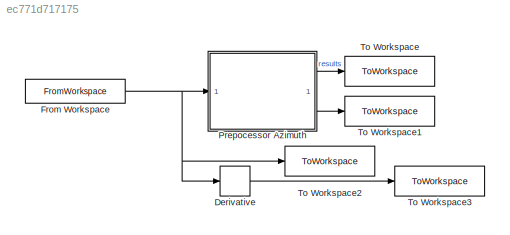
MODEL slx_ec771d717175
KIND model
CONFIG AbsTol = auto
CONFIG EnableMultiTasking = off
CONFIG FixedStep = auto
CONFIG MaxStep = auto
CONFIG MinStep = auto
CONFIG RelTol = 1e-3
CONFIG SampleTimeConstraint = Unconstrained
CONFIG SolverName = VariableStepAuto
CONFIG StartTime = 0.0
CONFIG StopTime = 300
BLOCK [Derivative] Derivative
BLOCK [FromWorkspace] From Workspace
  VariableName = target_tm
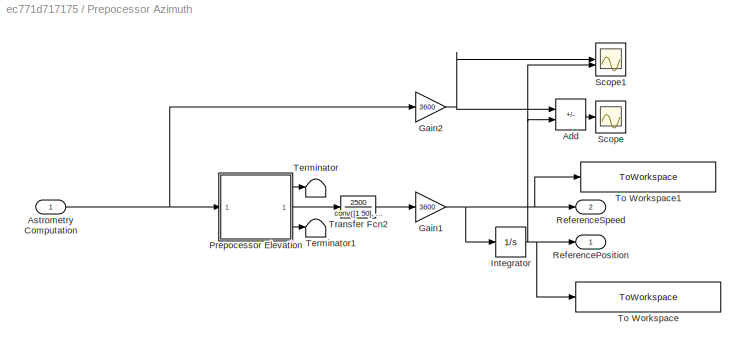
BLOCK [SubSystem] Prepocessor Azimuth
BLOCK [Sum] Prepocessor Azimuth/Add
  IconShape = rectangular
  Inputs = +-
BLOCK [Inport] Prepocessor Azimuth/Astrometry Computation
BLOCK [Gain] Prepocessor Azimuth/Gain1
  Gain = 3600
BLOCK [Gain] Prepocessor Azimuth/Gain2
  Gain = 3600
BLOCK [Integrator] Prepocessor Azimuth/Integrator
  InitialCondition = Prepocess.p0az*3600
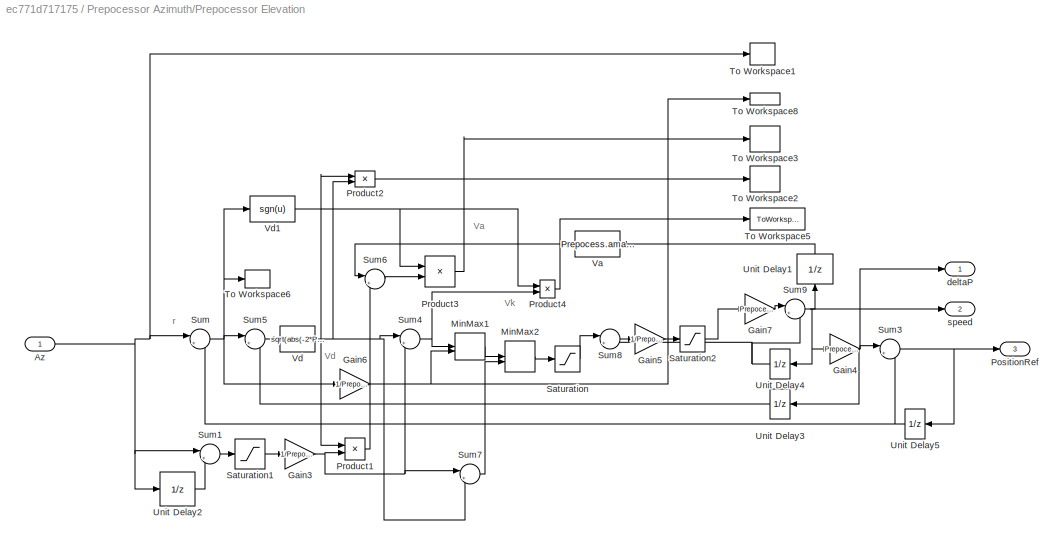
BLOCK [SubSystem] Prepocessor Azimuth/Prepocessor Elevation
  SystemSampleTime = Prepocess.Ts
  TreatAsAtomicUnit = on
BLOCK [Inport] Prepocessor Azimuth/Prepocessor Elevation/Az
BLOCK [Gain] Prepocessor Azimuth/Prepocessor Elevation/Gain3
  Gain = 1/Prepocess.Ts
BLOCK [Gain] Prepocessor Azimuth/Prepocessor Elevation/Gain4
  Gain = Prepocess.Ts
BLOCK [Gain] Prepocessor Azimuth/Prepocessor Elevation/Gain5
  Gain = 1/Prepocess.Ts
BLOCK [Gain] Prepocessor Azimuth/Prepocessor Elevation/Gain6
  Gain = 1/Prepocess.Ts
BLOCK [Gain] Prepocessor Azimuth/Prepocessor Elevation/Gain7
  Gain = Prepocess.Ts
BLOCK [MinMax] Prepocessor Azimuth/Prepocessor Elevation/MinMax1
  Inputs = 2
BLOCK [MinMax] Prepocessor Azimuth/Prepocessor Elevation/MinMax2
  Function = max
  Inputs = 2
BLOCK [Outport] Prepocessor Azimuth/Prepocessor Elevation/PositionRef
  Port = 3
BLOCK [Product] Prepocessor Azimuth/Prepocessor Elevation/Product1
BLOCK [Product] Prepocessor Azimuth/Prepocessor Elevation/Product2
BLOCK [Product] Prepocessor Azimuth/Prepocessor Elevation/Product3
BLOCK [Product] Prepocessor Azimuth/Prepocessor Elevation/Product4
BLOCK [Saturate] Prepocessor Azimuth/Prepocessor Elevation/Saturation
  LowerLimit = -Prepocess.vmax
  UpperLimit = Prepocess.vmax
BLOCK [Saturate] Prepocessor Azimuth/Prepocessor Elevation/Saturation1
  LowerLimit = -Prepocess.vmax*Prepocess.Ts
  UpperLimit = Prepocess.vmax*Prepocess.Ts
BLOCK [Saturate] Prepocessor Azimuth/Prepocessor Elevation/Saturation2
  LowerLimit = -Prepocess.amax
  UpperLimit = Prepocess.amax
BLOCK [Sum] Prepocessor Azimuth/Prepocessor Elevation/Sum
  Inputs = |+-
BLOCK [Sum] Prepocessor Azimuth/Prepocessor Elevation/Sum1
  Inputs = |+-
BLOCK [Sum] Prepocessor Azimuth/Prepocessor Elevation/Sum3
  Inputs = |++
BLOCK [Sum] Prepocessor Azimuth/Prepocessor Elevation/Sum4
  Inputs = |++
BLOCK [Sum] Prepocessor Azimuth/Prepocessor Elevation/Sum5
  Inputs = |+-
BLOCK [Sum] Prepocessor Azimuth/Prepocessor Elevation/Sum6
  Inputs = |+-
BLOCK [Sum] Prepocessor Azimuth/Prepocessor Elevation/Sum7
  Inputs = |+-
BLOCK [Sum] Prepocessor Azimuth/Prepocessor Elevation/Sum8
  Inputs = |+-
BLOCK [Sum] Prepocessor Azimuth/Prepocessor Elevation/Sum9
  Inputs = |++
BLOCK [ToWorkspace] Prepocessor Azimuth/Prepocessor Elevation/To Workspace1
  Commented = on
  FixptAsFi = on
  MaxDataPoints = inf
  SampleTime = -1
  VariableName = p
BLOCK [ToWorkspace] Prepocessor Azimuth/Prepocessor Elevation/To Workspace2
  Commented = on
  FixptAsFi = on
  MaxDataPoints = inf
  SampleTime = -1
  VariableName = Vd
BLOCK [ToWorkspace] Prepocessor Azimuth/Prepocessor Elevation/To Workspace3
  Commented = on
  FixptAsFi = on
  MaxDataPoints = inf
  SampleTime = -1
  VariableName = Va
BLOCK [ToWorkspace] Prepocessor Azimuth/Prepocessor Elevation/To Workspace5
  Commented = on
  FixptAsFi = on
  MaxDataPoints = inf
  SampleTime = -1
  VariableName = deltaP_ads
BLOCK [ToWorkspace] Prepocessor Azimuth/Prepocessor Elevation/To Workspace6
  Commented = on
  FixptAsFi = on
  MaxDataPoints = inf
  SampleTime = -1
  VariableName = e
BLOCK [ToWorkspace] Prepocessor Azimuth/Prepocessor Elevation/To Workspace8
  Commented = on
  FixptAsFi = on
  MaxDataPoints = inf
  SampleTime = -1
  VariableName = V
BLOCK [UnitDelay] Prepocessor Azimuth/Prepocessor Elevation/Unit Delay1
  HasFrameUpgradeWarning = on
  NameLocation = right
  SampleTime = -1
BLOCK [UnitDelay] Prepocessor Azimuth/Prepocessor Elevation/Unit Delay2
  HasFrameUpgradeWarning = on
  SampleTime = -1
BLOCK [UnitDelay] Prepocessor Azimuth/Prepocessor Elevation/Unit Delay3
  HasFrameUpgradeWarning = on
  SampleTime = -1
BLOCK [UnitDelay] Prepocessor Azimuth/Prepocessor Elevation/Unit Delay4
  HasFrameUpgradeWarning = on
  SampleTime = -1
BLOCK [UnitDelay] Prepocessor Azimuth/Prepocessor Elevation/Unit Delay5
  HasFrameUpgradeWarning = on
  InitialCondition = Prepocess.p0az
  SampleTime = -1
BLOCK [Fcn] Prepocessor Azimuth/Prepocessor Elevation/Va
  Expr = Prepocess.amax*Prepocess.Ts+abs(u)
BLOCK [Fcn] Prepocessor Azimuth/Prepocessor Elevation/Vd
  Expr = sqrt(abs(-2*Prepocess.amax*u))
BLOCK [Fcn] Prepocessor Azimuth/Prepocessor Elevation/Vd1
  Expr = sgn(u)
BLOCK [Outport] Prepocessor Azimuth/Prepocessor Elevation/deltaP
BLOCK [Outport] Prepocessor Azimuth/Prepocessor Elevation/speed
  Port = 2
BLOCK [Outport] Prepocessor Azimuth/ReferencePosition
BLOCK [Outport] Prepocessor Azimuth/ReferenceSpeed
  Port = 2
BLOCK [Scope] Prepocessor Azimuth/Scope
  Floating = off
  NumInputPorts = 1
  ScopeSpecificationString = Simulink.scopes.TimeScopeBlockCfg('CurrentConfiguration', extmgr.ConfigurationSet(extmgr.Configuration('Core','General UI',true),extmgr.Configuration('Core','Source UI',true),extmgr.Configuration('Sources','WiredSimulink',true,'DataLoggingVariableName','ScopeData1'),extmgr.Configuration('Visuals','Time Domain',true,'SerializedDisplays',{struct('MinYLimReal','-109291.31124','MaxYLimReal','-44041.12...<+1444ch>
BLOCK [Scope] Prepocessor Azimuth/Scope1
  Floating = off
  NumInputPorts = 2
  ScopeSpecificationString = Simulink.scopes.TimeScopeBlockCfg('CurrentConfiguration', extmgr.ConfigurationSet(extmgr.Configuration('Core','General UI',true),extmgr.Configuration('Core','Source UI',true),extmgr.Configuration('Sources','WiredSimulink',true,'DataLoggingVariableName','ScopeData3'),extmgr.Configuration('Visuals','Time Domain',true,'SerializedDisplays',{struct('MinYLimReal','1124058.9974','MaxYLimReal','1363233.98...<+1516ch>
BLOCK [Terminator] Prepocessor Azimuth/Terminator
BLOCK [Terminator] Prepocessor Azimuth/Terminator1
BLOCK [ToWorkspace] Prepocessor Azimuth/To Workspace
  FixptAsFi = on
  MaxDataPoints = inf
  SampleTime = -1
  SaveFormat = Timeseries
  VariableName = ReferenceProcessedPositionAz
BLOCK [ToWorkspace] Prepocessor Azimuth/To Workspace1
  FixptAsFi = on
  MaxDataPoints = inf
  SampleTime = -1
  SaveFormat = Timeseries
  VariableName = ReferenceProcessedSpeedAz
BLOCK [TransferFcn] Prepocessor Azimuth/Transfer Fcn2
  Denominator = conv([1 50], [1 50])
  Numerator = 2500
BLOCK [ToWorkspace] To Workspace
  FixptAsFi = on
  MaxDataPoints = inf
  SampleTime = -1
  SaveFormat = Timeseries
  VariableName = TGposRef
BLOCK [ToWorkspace] To Workspace1
  FixptAsFi = on
  MaxDataPoints = inf
  SampleTime = -1
  SaveFormat = Timeseries
  VariableName = TGspeedRef
BLOCK [ToWorkspace] To Workspace2
  FixptAsFi = on
  MaxDataPoints = inf
  SampleTime = -1
  SaveFormat = Timeseries
  VariableName = AstroPosRef
BLOCK [ToWorkspace] To Workspace3
  FixptAsFi = on
  MaxDataPoints = inf
  SampleTime = -1
  SaveFormat = Timeseries
  VariableName = AstroSpeedRef
ANNOTATION Prepocessor Azimuth/Prepocessor Elevation: Va
ANNOTATION Prepocessor Azimuth/Prepocessor Elevation: Vd
ANNOTATION Prepocessor Azimuth/Prepocessor Elevation: Vk
ANNOTATION Prepocessor Azimuth/Prepocessor Elevation: r
LINE Derivative:1 -> To Workspace3:1
NET From Workspace:1 -> Derivative:1, Prepocessor Azimuth:1, To Workspace2:1
LINE Prepocessor Azimuth/Add:1 -> Prepocessor Azimuth/Scope:1
NET Prepocessor Azimuth/Astrometry Computation:1 -> Prepocessor Azimuth/Gain2:1, Prepocessor Azimuth/Prepocessor Elevation:1
NET Prepocessor Azimuth/Gain1:1 -> Prepocessor Azimuth/Integrator:1, Prepocessor Azimuth/ReferenceSpeed:1, Prepocessor Azimuth/To Workspace1:1
NET Prepocessor Azimuth/Gain2:1 -> Prepocessor Azimuth/Add:1, Prepocessor Azimuth/Scope1:1
NET Prepocessor Azimuth/Integrator:1 -> Prepocessor Azimuth/Add:2, Prepocessor Azimuth/ReferencePosition:1, Prepocessor Azimuth/Scope1:2, Prepocessor Azimuth/To Workspace:1
NET Prepocessor Azimuth/Prepocessor Elevation/Az:1 -> Prepocessor Azimuth/Prepocessor Elevation/Sum1:1, Prepocessor Azimuth/Prepocessor Elevation/Sum:1, Prepocessor Azimuth/Prepocessor Elevation/To Workspace1:1, Prepocessor Azimuth/Prepocessor Elevation/Unit Delay2:1
NET Prepocessor Azimuth/Prepocessor Elevation/Gain3:1 -> Prepocessor Azimuth/Prepocessor Elevation/Product1:2, Prepocessor Azimuth/Prepocessor Elevation/Sum4:2, Prepocessor Azimuth/Prepocessor Elevation/Sum7:1
NET Prepocessor Azimuth/Prepocessor Elevation/Gain4:1 -> Prepocessor Azimuth/Prepocessor Elevation/Sum3:1, Prepocessor Azimuth/Prepocessor Elevation/Unit Delay3:1, Prepocessor Azimuth/Prepocessor Elevation/deltaP:1
LINE Prepocessor Azimuth/Prepocessor Elevation/Gain5:1 -> Prepocessor Azimuth/Prepocessor Elevation/Saturation2:1
NET Prepocessor Azimuth/Prepocessor Elevation/Gain6:1 -> Prepocessor Azimuth/Prepocessor Elevation/MinMax1:2, Prepocessor Azimuth/Prepocessor Elevation/To Workspace8:1
LINE Prepocessor Azimuth/Prepocessor Elevation/Gain7:1 -> Prepocessor Azimuth/Prepocessor Elevation/Sum9:1
LINE Prepocessor Azimuth/Prepocessor Elevation/MinMax1:1 -> Prepocessor Azimuth/Prepocessor Elevation/MinMax2:1
LINE Prepocessor Azimuth/Prepocessor Elevation/MinMax2:1 -> Prepocessor Azimuth/Prepocessor Elevation/Saturation:1
LINE Prepocessor Azimuth/Prepocessor Elevation/Product1:1 -> Prepocessor Azimuth/Prepocessor Elevation/Sum6:2
LINE Prepocessor Azimuth/Prepocessor Elevation/Product2:1 -> Prepocessor Azimuth/Prepocessor Elevation/To Workspace2:1
LINE Prepocessor Azimuth/Prepocessor Elevation/Product3:1 -> Prepocessor Azimuth/Prepocessor Elevation/To Workspace3:1
LINE Prepocessor Azimuth/Prepocessor Elevation/Product4:1 -> Prepocessor Azimuth/Prepocessor Elevation/To Workspace5:1
LINE Prepocessor Azimuth/Prepocessor Elevation/Saturation1:1 -> Prepocessor Azimuth/Prepocessor Elevation/Gain3:1
LINE Prepocessor Azimuth/Prepocessor Elevation/Saturation2:1 -> Prepocessor Azimuth/Prepocessor Elevation/Gain7:1
LINE Prepocessor Azimuth/Prepocessor Elevation/Saturation:1 -> Prepocessor Azimuth/Prepocessor Elevation/Sum8:1
LINE Prepocessor Azimuth/Prepocessor Elevation/Sum1:1 -> Prepocessor Azimuth/Prepocessor Elevation/Saturation1:1
NET Prepocessor Azimuth/Prepocessor Elevation/Sum3:1 -> Prepocessor Azimuth/Prepocessor Elevation/PositionRef:1, Prepocessor Azimuth/Prepocessor Elevation/Unit Delay5:1
NET Prepocessor Azimuth/Prepocessor Elevation/Sum4:1 -> Prepocessor Azimuth/Prepocessor Elevation/MinMax1:1, Prepocessor Azimuth/Prepocessor Elevation/Product4:2
LINE Prepocessor Azimuth/Prepocessor Elevation/Sum5:1 -> Prepocessor Azimuth/Prepocessor Elevation/Vd:1
LINE Prepocessor Azimuth/Prepocessor Elevation/Sum6:1 -> Prepocessor Azimuth/Prepocessor Elevation/Product3:2
LINE Prepocessor Azimuth/Prepocessor Elevation/Sum7:1 -> Prepocessor Azimuth/Prepocessor Elevation/MinMax2:2
LINE Prepocessor Azimuth/Prepocessor Elevation/Sum8:1 -> Prepocessor Azimuth/Prepocessor Elevation/Gain5:1
NET Prepocessor Azimuth/Prepocessor Elevation/Sum9:1 -> Prepocessor Azimuth/Prepocessor Elevation/Gain4:1, Prepocessor Azimuth/Prepocessor Elevation/Unit Delay1:1, Prepocessor Azimuth/Prepocessor Elevation/Unit Delay4:1, Prepocessor Azimuth/Prepocessor Elevation/speed:1
NET Prepocessor Azimuth/Prepocessor Elevation/Sum:1 -> Prepocessor Azimuth/Prepocessor Elevation/Gain6:1, Prepocessor Azimuth/Prepocessor Elevation/Sum5:1, Prepocessor Azimuth/Prepocessor Elevation/To Workspace6:1, Prepocessor Azimuth/Prepocessor Elevation/Vd1:1
LINE Prepocessor Azimuth/Prepocessor Elevation/Unit Delay1:1 -> Prepocessor Azimuth/Prepocessor Elevation/Va:1
LINE Prepocessor Azimuth/Prepocessor Elevation/Unit Delay2:1 -> Prepocessor Azimuth/Prepocessor Elevation/Sum1:2
LINE Prepocessor Azimuth/Prepocessor Elevation/Unit Delay3:1 -> Prepocessor Azimuth/Prepocessor Elevation/Sum5:2
NET Prepocessor Azimuth/Prepocessor Elevation/Unit Delay4:1 -> Prepocessor Azimuth/Prepocessor Elevation/Sum8:2, Prepocessor Azimuth/Prepocessor Elevation/Sum9:2
NET Prepocessor Azimuth/Prepocessor Elevation/Unit Delay5:1 -> Prepocessor Azimuth/Prepocessor Elevation/Sum3:2, Prepocessor Azimuth/Prepocessor Elevation/Sum:2
LINE Prepocessor Azimuth/Prepocessor Elevation/Va:1 -> Prepocessor Azimuth/Prepocessor Elevation/Sum6:1
NET Prepocessor Azimuth/Prepocessor Elevation/Vd1:1 -> Prepocessor Azimuth/Prepocessor Elevation/Product1:1, Prepocessor Azimuth/Prepocessor Elevation/Product2:1, Prepocessor Azimuth/Prepocessor Elevation/Product3:1, Prepocessor Azimuth/Prepocessor Elevation/Product4:1
NET Prepocessor Azimuth/Prepocessor Elevation/Vd:1 -> Prepocessor Azimuth/Prepocessor Elevation/Product2:2, Prepocessor Azimuth/Prepocessor Elevation/Sum4:1, Prepocessor Azimuth/Prepocessor Elevation/Sum7:2
LINE Prepocessor Azimuth/Prepocessor Elevation:1 -> Prepocessor Azimuth/Terminator:1
LINE Prepocessor Azimuth/Prepocessor Elevation:2 -> Prepocessor Azimuth/Transfer Fcn2:1
LINE Prepocessor Azimuth/Prepocessor Elevation:3 -> Prepocessor Azimuth/Terminator1:1
LINE Prepocessor Azimuth/Transfer Fcn2:1 -> Prepocessor Azimuth/Gain1:1
LINE Prepocessor Azimuth:1 -> To Workspace:1
LINE Prepocessor Azimuth:2 -> To Workspace1:1
note: NET lines group one-source signal fan-out (src -> all destinations, sorted); 1:1 wires keep LINE
